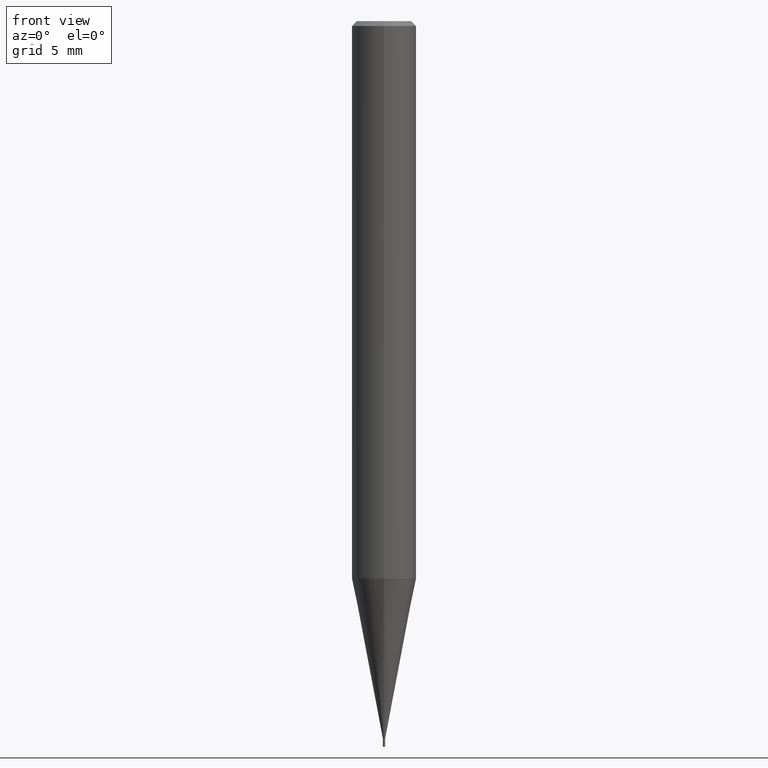
[diagram: clean part render]
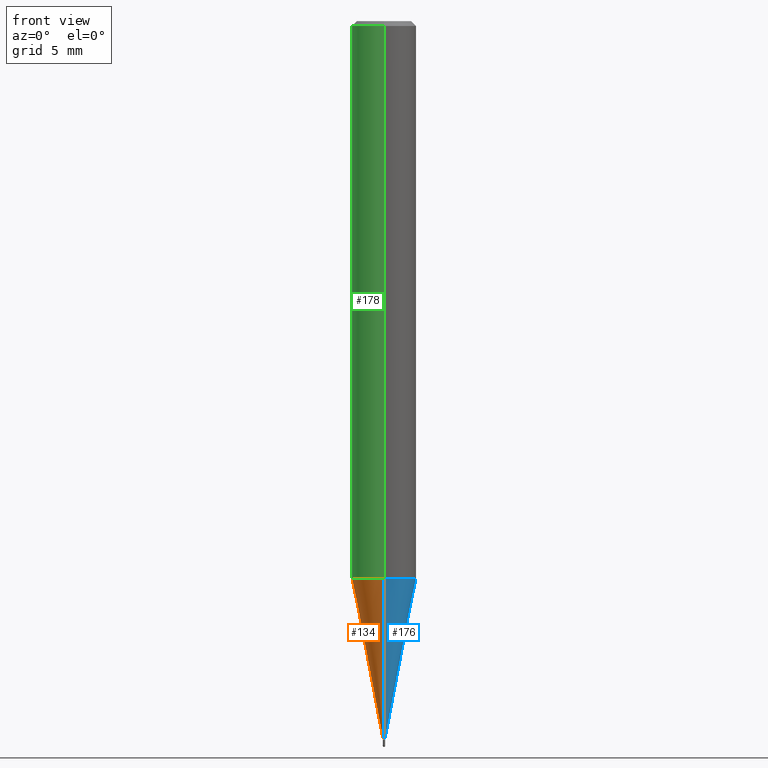
[diagram: same view with three faces highlighted in distinct colors, each labeled with its STEP entity id]
A machine part, front view with three faces highlighted in distinct colors.
Their STEP definitions:

[orange] entity #134 — the highlighted conical surface has half-angle 11 deg.
#112=VERTEX_POINT('',#256);
#128=VERTEX_POINT('',#274);
#134=ADVANCED_FACE('',(#282),#283,.T.);
#136=EDGE_CURVE('',#112,#170,#285,.T.);
#154=EDGE_CURVE('',#112,#128,#305,.T.);
#164=EDGE_CURVE('',#208,#128,#315,.T.);
#170=VERTEX_POINT('',#321);
#208=VERTEX_POINT('',#365);
#210=EDGE_CURVE('',#170,#208,#367,.T.);
#256=CARTESIAN_POINT('',(8.25996985653193E-018,-0.06745,-44.5));
#274=CARTESIAN_POINT('',(0.0,0.06745,-44.5));
#282=FACE_OUTER_BOUND('',#443,.T.);
#283=CONICAL_SURFACE('',#444,1.0337,0.191983403757332);
#285=LINE('',#447,#448);
#305=CIRCLE('',#476,0.06745);
#315=LINE('',#490,#491);
#321=CARTESIAN_POINT('',(2.44915147732706E-016,-1.99995,-34.558));
#365=CARTESIAN_POINT('',(0.0,1.99995,-34.558));
#367=CIRCLE('',#551,1.99995);
#443=EDGE_LOOP('',(#620,#621,#622,#623));
#444=AXIS2_PLACEMENT_3D('',#624,#625,#626);
#447=CARTESIAN_POINT('',(1.26587558794619E-016,-1.0337,-39.529));
#448=VECTOR('',#627,1.0);
#476=AXIS2_PLACEMENT_3D('',#653,#654,#655);
#490=CARTESIAN_POINT('',(-1.26587558794619E-016,1.0337,-39.529));
#491=VECTOR('',#660,1.0);
#551=AXIS2_PLACEMENT_3D('',#726,#727,#728);
#620=ORIENTED_EDGE('',*,*,#164,.T.);
#621=ORIENTED_EDGE('',*,*,#154,.F.);
#622=ORIENTED_EDGE('',*,*,#136,.T.);
#623=ORIENTED_EDGE('',*,*,#210,.T.);
#624=CARTESIAN_POINT('',(0.0,0.0,-39.529));
#625=DIRECTION('',(-0.0,-0.0,1.0));
#626=DIRECTION('',(0.0,1.0,0.0));
#627=DIRECTION('',(2.33662525420506E-017,-0.190806233114154,0.981627720373048));
#653=CARTESIAN_POINT('',(0.0,0.0,-44.5));
#654=DIRECTION('',(0.0,0.0,-1.0));
#655=DIRECTION('',(0.0,1.0,0.0));
#660=DIRECTION('',(2.33662525420506E-017,-0.190806233114154,-0.981627720373048));
#726=CARTESIAN_POINT('',(0.0,0.0,-34.558));
#727=DIRECTION('',(0.0,0.0,-1.0));
#728=DIRECTION('',(0.0,1.0,0.0));

[blue] entity #176 — the highlighted conical surface has half-angle 11 deg.
#98=EDGE_CURVE('',#208,#170,#241,.T.);
#112=VERTEX_POINT('',#256);
#128=VERTEX_POINT('',#274);
#136=EDGE_CURVE('',#112,#170,#285,.T.);
#164=EDGE_CURVE('',#208,#128,#315,.T.);
#168=EDGE_CURVE('',#128,#112,#319,.T.);
#170=VERTEX_POINT('',#321);
#176=ADVANCED_FACE('',(#328),#329,.T.);
#208=VERTEX_POINT('',#365);
#241=CIRCLE('',#392,1.99995);
#256=CARTESIAN_POINT('',(8.25996985653193E-018,-0.06745,-44.5));
#274=CARTESIAN_POINT('',(0.0,0.06745,-44.5));
#285=LINE('',#447,#448);
#315=LINE('',#490,#491);
#319=CIRCLE('',#497,0.06745);
#321=CARTESIAN_POINT('',(2.44915147732706E-016,-1.99995,-34.558));
#328=FACE_OUTER_BOUND('',#507,.T.);
#329=CONICAL_SURFACE('',#508,1.0337,0.191983403757332);
#365=CARTESIAN_POINT('',(0.0,1.99995,-34.558));
#392=AXIS2_PLACEMENT_3D('',#575,#576,#577);
#447=CARTESIAN_POINT('',(1.26587558794619E-016,-1.0337,-39.529));
#448=VECTOR('',#627,1.0);
#490=CARTESIAN_POINT('',(-1.26587558794619E-016,1.0337,-39.529));
#491=VECTOR('',#660,1.0);
#497=AXIS2_PLACEMENT_3D('',#664,#665,#666);
#507=EDGE_LOOP('',(#679,#680,#681,#682));
#508=AXIS2_PLACEMENT_3D('',#683,#684,#685);
#575=CARTESIAN_POINT('',(0.0,0.0,-34.558));
#576=DIRECTION('',(0.0,0.0,-1.0));
#577=DIRECTION('',(0.0,1.0,0.0));
#627=DIRECTION('',(2.33662525420506E-017,-0.190806233114154,0.981627720373048));
#660=DIRECTION('',(2.33662525420506E-017,-0.190806233114154,-0.981627720373048));
#664=CARTESIAN_POINT('',(0.0,0.0,-44.5));
#665=DIRECTION('',(0.0,0.0,-1.0));
#666=DIRECTION('',(0.0,1.0,0.0));
#679=ORIENTED_EDGE('',*,*,#164,.F.);
#680=ORIENTED_EDGE('',*,*,#98,.T.);
#681=ORIENTED_EDGE('',*,*,#136,.F.);
#682=ORIENTED_EDGE('',*,*,#168,.F.);
#683=CARTESIAN_POINT('',(0.0,0.0,-39.529));
#684=DIRECTION('',(-0.0,-0.0,1.0));
#685=DIRECTION('',(0.0,1.0,0.0));

[green] entity #178 — the highlighted cylindrical surface (edge-blend (fillet) strip) has radius 2 mm, axis along (-0, -0, 1).
#104=EDGE_CURVE('',#114,#180,#247,.T.);
#114=VERTEX_POINT('',#258);
#146=EDGE_CURVE('',#204,#160,#296,.T.);
#160=VERTEX_POINT('',#311);
#174=EDGE_CURVE('',#204,#180,#326,.T.);
#178=ADVANCED_FACE('',(#331),#332,.T.);
#180=VERTEX_POINT('',#334);
#204=VERTEX_POINT('',#361);
#214=EDGE_CURVE('',#160,#114,#372,.T.);
#247=LINE('',#401,#402);
#258=CARTESIAN_POINT('',(0.0,2.0,-0.299999999999997));
#296=LINE('',#463,#464);
#311=CARTESIAN_POINT('',(2.44921270764475E-016,-2.0,-0.299999999999997));
#326=CIRCLE('',#505,2.0);
#331=FACE_OUTER_BOUND('',#510,.T.);
#332=CYLINDRICAL_SURFACE('',#511,2.0);
#334=CARTESIAN_POINT('',(0.0,2.0,-34.558));
#361=CARTESIAN_POINT('',(2.44921270764475E-016,-2.0,-34.558));
#372=CIRCLE('',#557,2.0);
#401=CARTESIAN_POINT('',(-2.44921270764475E-016,2.0,-17.429));
#402=VECTOR('',#584,1.0);
#463=CARTESIAN_POINT('',(2.44921270764475E-016,-2.0,-17.429));
#464=VECTOR('',#638,1.0);
#505=AXIS2_PLACEMENT_3D('',#675,#676,#677);
#510=EDGE_LOOP('',(#687,#688,#689,#690));
#511=AXIS2_PLACEMENT_3D('',#691,#692,#693);
#557=AXIS2_PLACEMENT_3D('',#737,#738,#739);
#584=DIRECTION('',(0.0,0.0,-1.0));
#638=DIRECTION('',(-0.0,-0.0,1.0));
#675=CARTESIAN_POINT('',(0.0,0.0,-34.558));
#676=DIRECTION('',(0.0,0.0,-1.0));
#677=DIRECTION('',(0.0,1.0,0.0));
#687=ORIENTED_EDGE('',*,*,#104,.T.);
#688=ORIENTED_EDGE('',*,*,#174,.F.);
#689=ORIENTED_EDGE('',*,*,#146,.T.);
#690=ORIENTED_EDGE('',*,*,#214,.T.);
#691=CARTESIAN_POINT('',(0.0,0.0,-17.429));
#692=DIRECTION('',(-0.0,-0.0,1.0));
#693=DIRECTION('',(0.0,1.0,0.0));
#737=CARTESIAN_POINT('',(0.0,0.0,-0.299999999999997));
#738=DIRECTION('',(0.0,0.0,-1.0));
#739=DIRECTION('',(0.0,1.0,0.0));